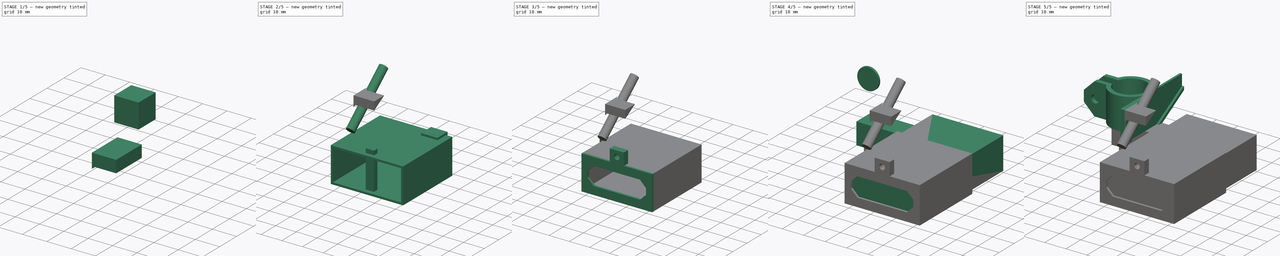
[diagram: build sequence overview — one tinted view per stage of 5, left to right]
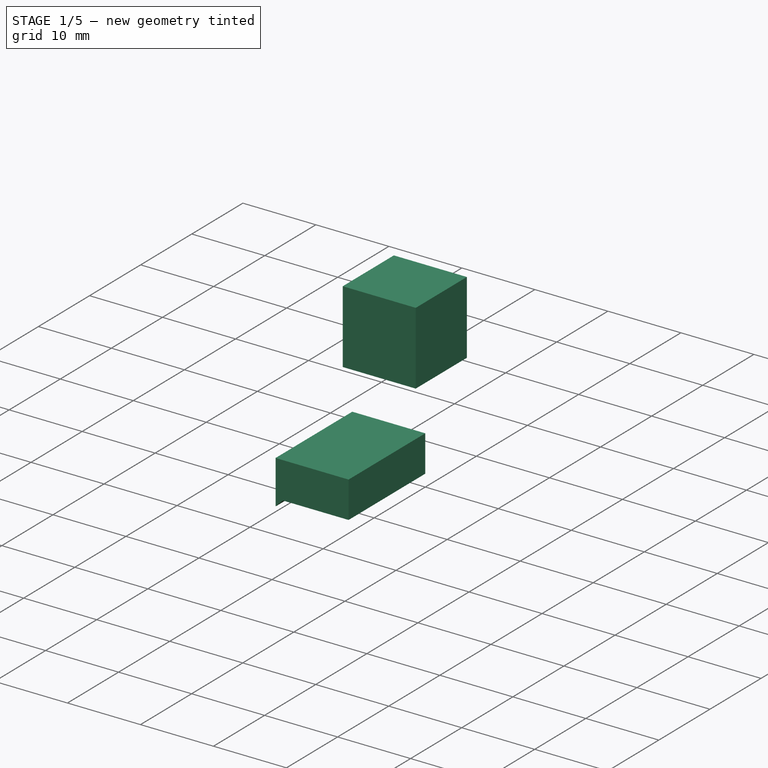
[diagram: stage 1 of 5 — iso view after this stage's code; geometry added in this stage tinted green]
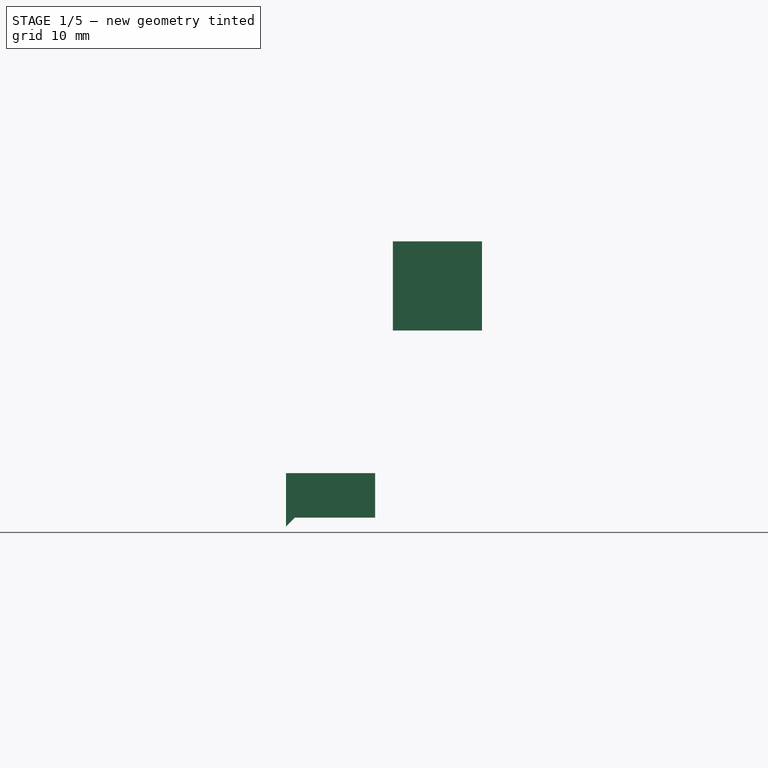
[diagram: stage 1 of 5 — front view after this stage's code; geometry added in this stage tinted green]
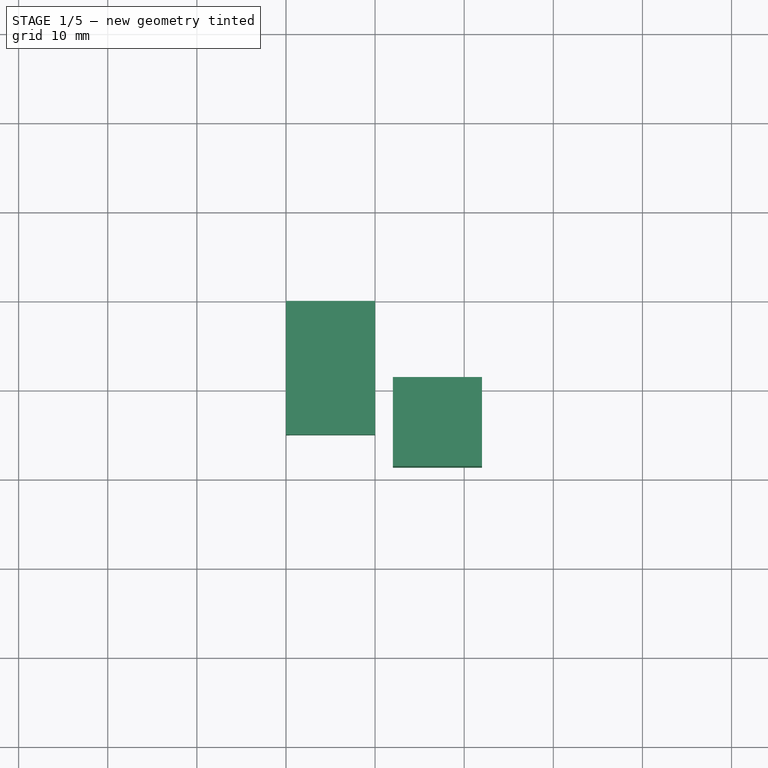
[diagram: stage 1 of 5 — top view after this stage's code; geometry added in this stage tinted green]
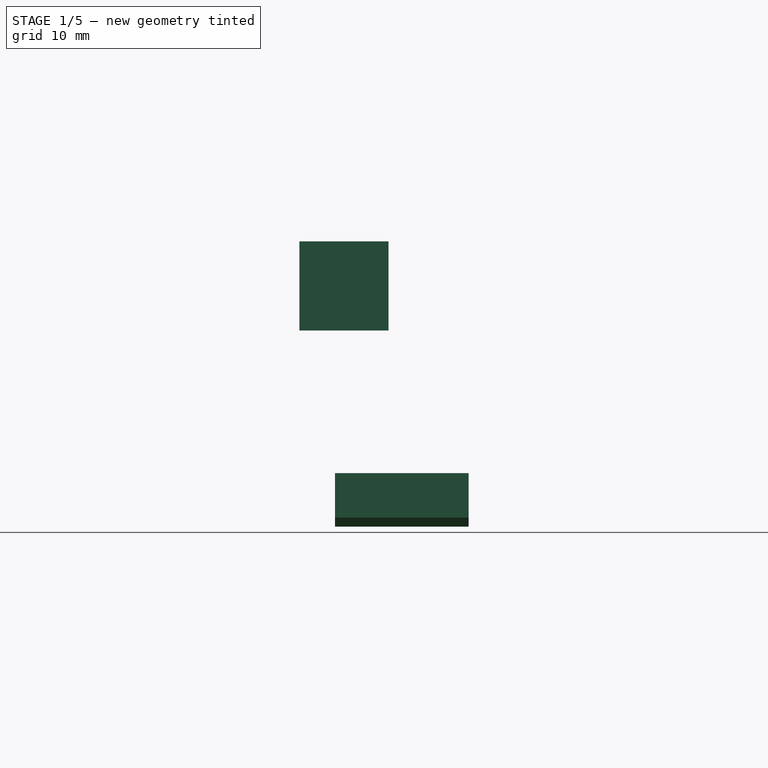
[diagram: stage 1 of 5 — right view after this stage's code; geometry added in this stage tinted green]
FCSTD DOCUMENT  (FreeCAD 0.19R24291 (Git))
Label: generalplus
License: All rights reserved
LicenseURL: http://en.wikipedia.org/wiki/All_rights_reserved
objects: Sketcher::SketchObject×12, Part::Extrusion×12, PartDesign::FeatureBase×6, PartDesign::Body×6, Part::Compound×4, Part::Cylinder×3, Part::Box×3, Part::Cut×3, Part::MultiFuse×2, Part::MultiCommon×2, Part::Mirroring×1, Spreadsheet::Sheet×1
note: 54 computed .brp shape members not serialized (recipe doc carries the construction recipe); baked Part::Feature solids carry a one-line shape summary decoded from their .brp

FEATURE [Sketcher::SketchObject] Sketch023
  FullyConstrained = true
  Placement = pos=(0,0,0) rot=(0.57735,-0.57735,-0.57735;2.0944rad)
  sketch-geometry (5):
    g0: LineSegment StartX=19 StartY=35 StartZ=0 EndX=19 EndY=20 EndZ=0
    g1: LineSegment StartX=19 StartY=20 StartZ=0 EndX=-6.5 EndY=20 EndZ=0
    g2: LineSegment StartX=-21 StartY=28.3716 StartZ=0 EndX=-21 EndY=35 EndZ=0
    g3: LineSegment StartX=-21 StartY=35 StartZ=0 EndX=19 EndY=35 EndZ=0
    g4: LineSegment StartX=-21 StartY=28.3716 StartZ=0 EndX=-6.5 EndY=20 EndZ=0
  constraints (15):
    c: Vertical(g0)
    c: Horizontal(g1)
    c: Vertical(g2)
    c: Coincident(g2,g3)
    c: Coincident(g3,g0)
    c: Horizontal(g3)
    c: DistanceY(g2) = 35
    c: DistanceX(g3,g3) = 40
    c: DistanceX(g0) = 19
    c: Coincident(g0,g1)
    c: DistanceY(g0,g0) = 15
    c: Coincident(g4,g2)
    c: Coincident(g4,g1)
    c: Angle(g1,g4,g1) = 2.61799
    c: DistanceX(g1,g1) = 25.5
FEATURE [Part::Extrusion] Extrude020
  Base = -> Sketch023
  Dir = (-1,0,0)
  DirMode = 2
  FaceMakerClass = Part::FaceMakerBullseye
  LengthFwd = 0
  LengthRev = 2
  Placement = pos=(10,0,0) rot=(0,0,1;0rad)
  Solid = true
  Symmetric = false
FEATURE [Sketcher::SketchObject] Sketch024
  FullyConstrained = true
  Placement = pos=(0,-29,0) rot=(1,0,0;1.5708rad)
  sketch-geometry (4):
    g0: LineSegment StartX=13 StartY=-1.2 StartZ=0 EndX=8 EndY=-1.2 EndZ=0
    g1: LineSegment StartX=8 StartY=-1.2 StartZ=0 EndX=8 EndY=16.2 EndZ=0
    g2: LineSegment StartX=13 StartY=16.2 StartZ=0 EndX=8 EndY=16.2 EndZ=0
    g3: LineSegment StartX=13 StartY=16.2 StartZ=0 EndX=13 EndY=-1.2 EndZ=0
  constraints (12):
    c: Horizontal(g0)
    c: Coincident(g0,g1)
    c: Vertical(g1)
    c: Coincident(g2,g1)
    c: Horizontal(g2)
    c: DistanceY(g0) = -1.2
    c: DistanceX(g0) = 8
    c: DistanceX(g0,g0) = 5
    c: Coincident(g3,g2)
    c: Coincident(g3,g0)
    c: Vertical(g3)
    c: DistanceY(g1) = 16.2
FEATURE [Part::Extrusion] Extrude021
  Base = -> Sketch024
  Dir = (0,-1,2e-16)
  DirMode = 2
  FaceMakerClass = Part::FaceMakerBullseye
  LengthFwd = 1.5
  LengthRev = 60
  Solid = true
  Symmetric = false
FEATURE [PartDesign::FeatureBase] Clone009
  BaseFeature = -> Extrude021
FEATURE [PartDesign::Body] Body009
  BaseFeature = -> Extrude021
  Group = -> [Clone009]
  Origin = -> Origin009
  Placement = pos=(3,16.3,28.6) rot=(1,0,0;0.523599rad)
  Tip = -> Clone009
FEATURE [Part::Cut] Cut
  Base = -> Extrude020
  Tool = -> Body009
FEATURE [Part::Extrusion] Extrude028
  Base = -> Sketch031
  Dir = (0,-1,2e-16)
  DirMode = 2
  FaceMakerClass = Part::FaceMakerBullseye
  LengthFwd = 15
  LengthRev = 0
  Solid = true
  Symmetric = false
FEATURE [PartDesign::FeatureBase] Clone011
  BaseFeature = -> Extrude028
FEATURE [PartDesign::Body] Body011
  BaseFeature = -> Extrude028
  Group = -> [Clone011]
  Origin = -> Origin011
  Placement = pos=(12,-8.6,32.4) rot=(1,0,0;0.523599rad)
  Tip = -> Clone011
FEATURE [Part::Box] Box002  label="Cube001"
  AttacherType = Attacher::AttachEngine3D
  Height = 10
  Length = 10
  Placement = pos=(12,-19,35) rot=(-1,0,0;1.5708rad)
  Width = 10
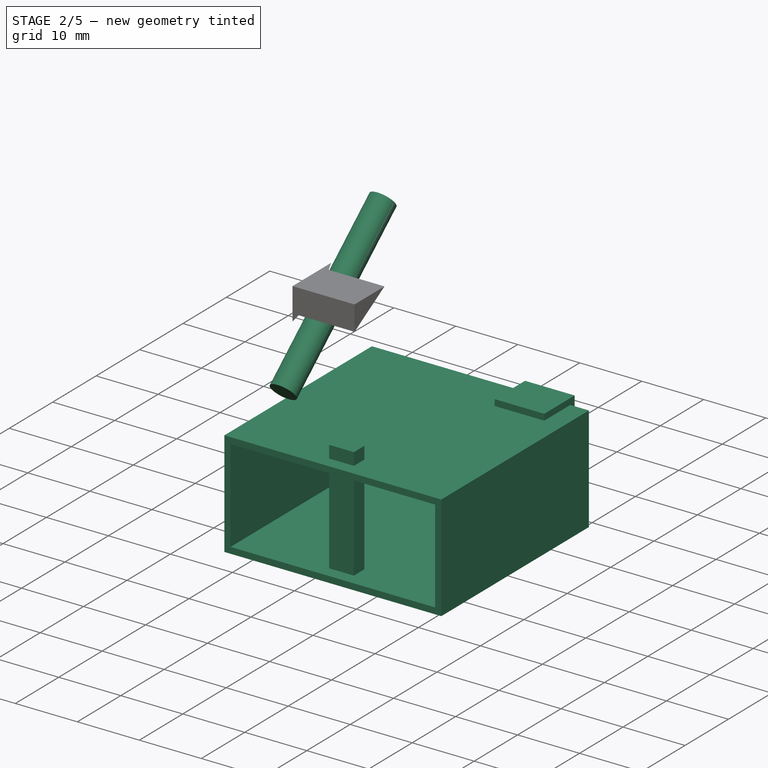
[diagram: stage 2 of 5 — iso view after this stage's code; geometry added in this stage tinted green]
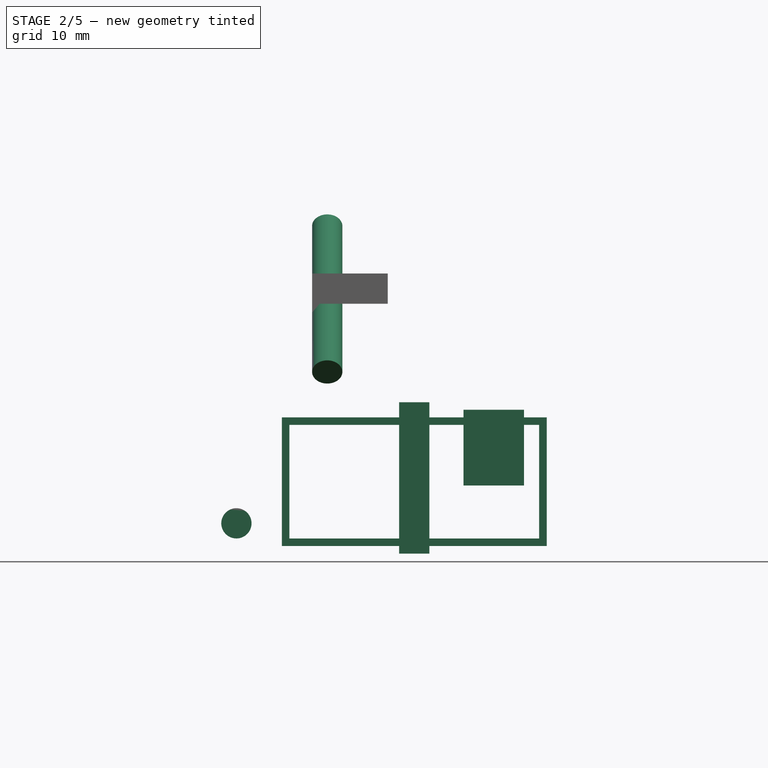
[diagram: stage 2 of 5 — front view after this stage's code; geometry added in this stage tinted green]
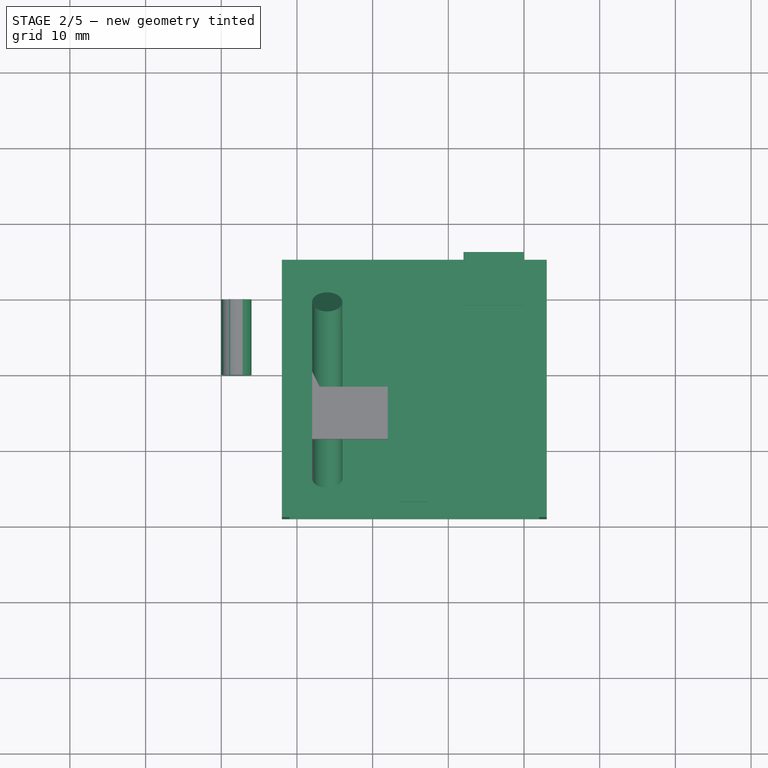
[diagram: stage 2 of 5 — top view after this stage's code; geometry added in this stage tinted green]
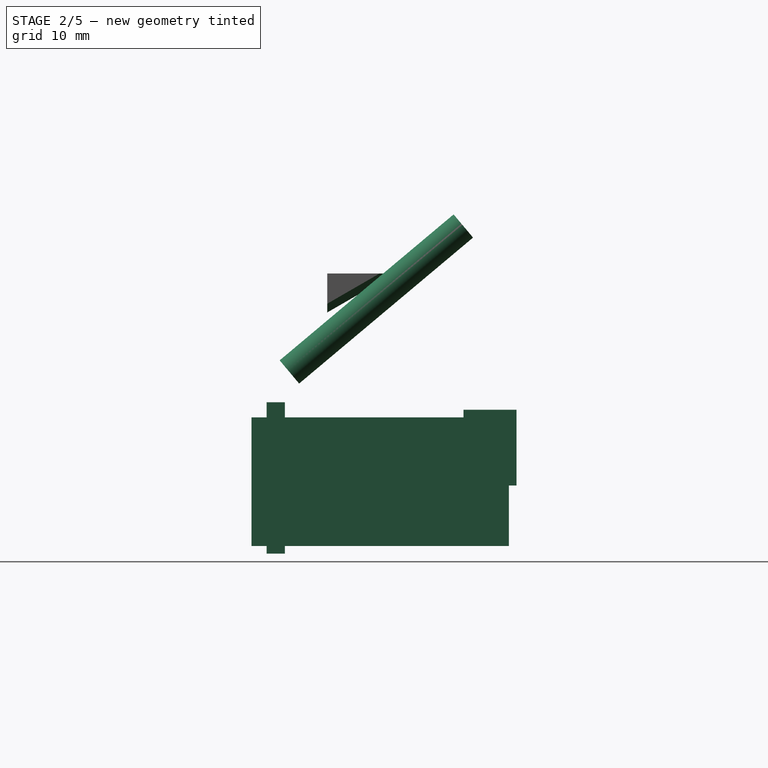
[diagram: stage 2 of 5 — right view after this stage's code; geometry added in this stage tinted green]
FEATURE [PartDesign::Body] Body  label="cam002"
  BaseFeature = -> Compound
  Group = -> [Clone]
  Origin = -> Origin
  Placement = pos=(3,16,32) rot=(1,0,0;0.698132rad)
  Tip = -> Clone
FEATURE [Sketcher::SketchObject] Sketch
  FullyConstrained = false
  Placement = pos=(0,-29,0) rot=(1,0,0;1.5708rad)
  sketch-geometry (8):
    g0: LineSegment StartX=9 StartY=15 StartZ=0 EndX=9 EndY=0 EndZ=0
    g1: LineSegment StartX=9 StartY=0 StartZ=0 EndX=42 EndY=0 EndZ=0
    g2: LineSegment StartX=43 StartY=-1 StartZ=0 EndX=8 EndY=-1 EndZ=0
    g3: LineSegment StartX=8 StartY=-1 StartZ=0 EndX=8 EndY=16 EndZ=0
    g4: LineSegment StartX=9 StartY=15 StartZ=0 EndX=42 EndY=15 EndZ=0
    g5: LineSegment StartX=43 StartY=16 StartZ=0 EndX=8 EndY=16 EndZ=0
    g6: LineSegment StartX=42 StartY=15 StartZ=0 EndX=42 EndY=0 EndZ=0
    g7: LineSegment StartX=43 StartY=-1 StartZ=0 EndX=43 EndY=16 EndZ=0
  constraints (20):
    c: PointOnObject(g0,g-1)
    c: Vertical(g0)
    c: Coincident(g0,g1)
    c: PointOnObject(g1,g-1)
    c: Horizontal(g2)
    c: Coincident(g2,g3)
    c: Vertical(g3)
    c: DistanceX(g1,g1) = 33
    c: DistanceX(g0,g3) = -1
    c: DistanceX(g0) = 9
    c: Coincident(g0,g4)
    c: Horizontal(g4)
    c: Coincident(g5,g3)
    c: Horizontal(g5)
    c: Coincident(g6,g4)
    c: Coincident(g6,g1)
    c: Vertical(g6)
    c: Coincident(g7,g2)
    c: Coincident(g7,g5)
    c: Vertical(g7)
FEATURE [Part::Extrusion] Extrude
  Base = -> Sketch
  Dir = (0,-1,2e-16)
  DirMode = 2
  FaceMakerClass = Part::FaceMakerBullseye
  LengthFwd = 0
  LengthRev = 34
  Solid = true
  Symmetric = false
FEATURE [Sketcher::SketchObject] Sketch027
  FullyConstrained = true
  Placement = pos=(0,0,18) rot=(0,0,1;0rad)
  sketch-geometry (4):
    g0: LineSegment StartX=23.5 StartY=-27 StartZ=0 EndX=27.5 EndY=-27 EndZ=0
    g1: LineSegment StartX=27.5 StartY=-27 StartZ=0 EndX=27.5 EndY=-24.6 EndZ=0
    g2: LineSegment StartX=27.5 StartY=-24.6 StartZ=0 EndX=23.5 EndY=-24.6 EndZ=0
    g3: LineSegment StartX=23.5 StartY=-24.6 StartZ=0 EndX=23.5 EndY=-27 EndZ=0
  constraints (12):
    c: Coincident(g0,g1)
    c: Coincident(g1,g2)
    c: Coincident(g2,g3)
    c: Coincident(g3,g0)
    c: Horizontal(g0)
    c: Horizontal(g2)
    c: Vertical(g1)
    c: Vertical(g3)
    c: DistanceX(g0,g1) = 4
    c: DistanceY(g0,g1) = 2.4
    c: DistanceX(g2) = 23.5
    c: DistanceY(g0) = -27
FEATURE [Part::Extrusion] Extrude024
  Base = -> Sketch027
  Dir = (0,0,1)
  DirMode = 2
  FaceMakerClass = Part::FaceMakerBullseye
  LengthFwd = 0
  LengthRev = 20
  Solid = true
  Symmetric = false
FEATURE [Sketcher::SketchObject] Sketch030
  FullyConstrained = true
  Placement = pos=(0,0,17) rot=(0,0,1;0rad)
  sketch-geometry (4):
    g0: LineSegment StartX=40 StartY=6 StartZ=0 EndX=32 EndY=6 EndZ=0
    g1: LineSegment StartX=32 StartY=6 StartZ=0 EndX=32 EndY=-1 EndZ=0
    g2: LineSegment StartX=32 StartY=-1 StartZ=0 EndX=40 EndY=-1 EndZ=0
    g3: LineSegment StartX=40 StartY=-1 StartZ=0 EndX=40 EndY=6 EndZ=0
  constraints (12):
    c: Coincident(g0,g1)
    c: Coincident(g1,g2)
    c: Coincident(g2,g3)
    c: Coincident(g3,g0)
    c: Horizontal(g0)
    c: Horizontal(g2)
    c: Vertical(g1)
    c: Vertical(g3)
    c: DistanceX(g0) = 40
    c: DistanceY(g0) = 6
    c: DistanceX(g0,g0) = 8
    c: DistanceY(g3,g3) = 7
FEATURE [Part::Extrusion] Extrude027
  Base = -> Sketch030
  Dir = (0,0,1)
  DirMode = 2
  FaceMakerClass = Part::FaceMakerBullseye
  LengthFwd = 0
  LengthRev = 10
  Solid = true
  Symmetric = false
FEATURE [Part::MultiFuse] Fusion
  Shapes = -> [Extrude024,Extrude027]
FEATURE [PartDesign::Body] Body008  label="cam enclosure001"
  BaseFeature = -> Compound004
  Group = -> [Clone008]
  Origin = -> Origin008
  Placement = pos=(3,16,28.5) rot=(1,0,0;0.523599rad)
  Tip = -> Clone008
FEATURE [Sketcher::SketchObject] Sketch031
  FullyConstrained = false
  MapMode = 3
  Placement = pos=(0,0,0) rot=(1,0,0;1.5708rad)
  Support = -> [Cut]
  sketch-geometry (5):
    g0: LineSegment StartX=0 StartY=3 StartZ=0 EndX=1 EndY=4 EndZ=0
    g1: LineSegment StartX=1 StartY=4 StartZ=0 EndX=10 EndY=4 EndZ=0
    g2: LineSegment StartX=10 StartY=4 StartZ=0 EndX=10 EndY=9 EndZ=0
    g3: LineSegment StartX=10 StartY=9 StartZ=0 EndX=0 EndY=9 EndZ=0
    g4: LineSegment StartX=0 StartY=9 StartZ=0 EndX=0 EndY=3 EndZ=0
  constraints (14):
    c: PointOnObject(g0,g-2)
    c: Coincident(g0,g1)
    c: Horizontal(g1)
    c: Coincident(g1,g2)
    c: Vertical(g2)
    c: Coincident(g2,g3)
    c: Horizontal(g3)
    c: Coincident(g4,g0)
    c: Vertical(g4)
    c: DistanceY(g1) = 4
    c: Coincident(g3,g4)
    c: DistanceX(g3,g3) = 10
    c: DistanceX(g0,g0) = 1
    c: DistanceY(g0,g0) = 1
FEATURE [Part::Cylinder] Cylinder
  Angle = 360
  AttacherType = Attacher::AttachEngine3D
  Height = 30
  Placement = pos=(14,-24,22) rot=(-1,0,0;0.872665rad)
  Radius = 2
FEATURE [Part::Cylinder] Cylinder008
  Angle = 360
  AttacherType = Attacher::AttachEngine3D
  Height = 10
  Placement = pos=(2,0,2) rot=(1,0,0;1.5708rad)
  Radius = 2
FEATURE [Part::MultiCommon] Common  label="cable"
  Shapes = -> [Box002,Body011]
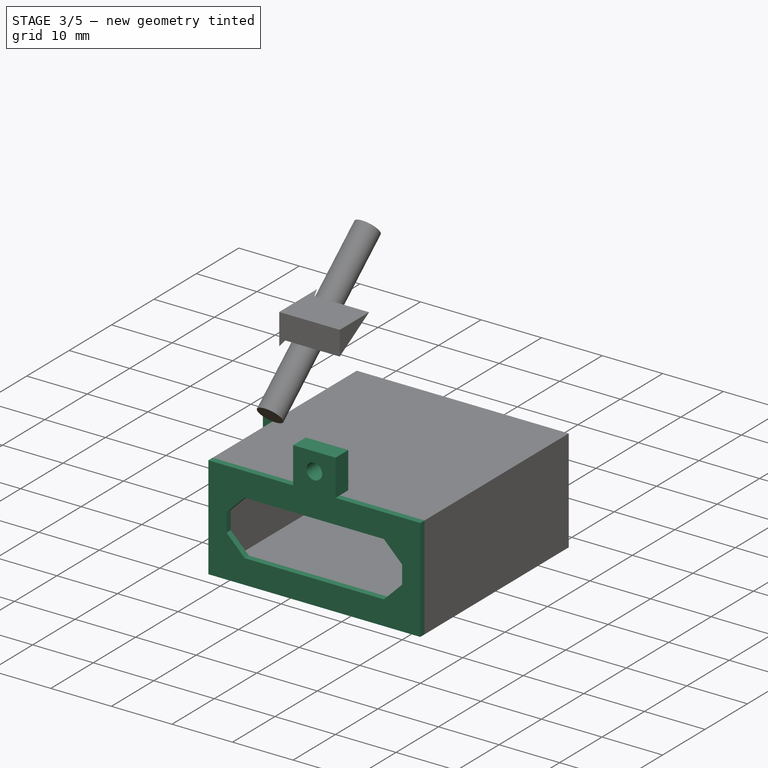
[diagram: stage 3 of 5 — iso view after this stage's code; geometry added in this stage tinted green]
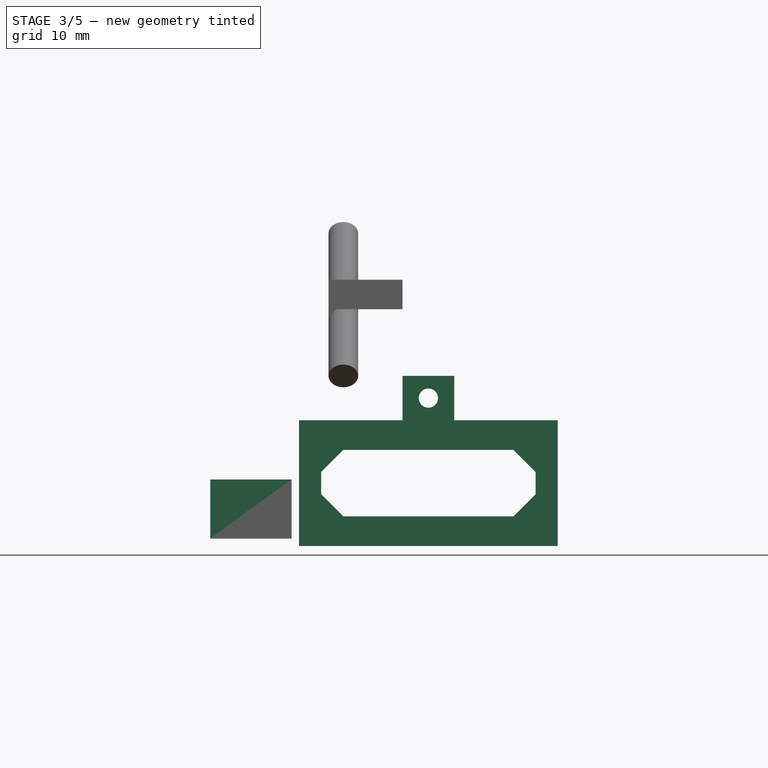
[diagram: stage 3 of 5 — front view after this stage's code; geometry added in this stage tinted green]
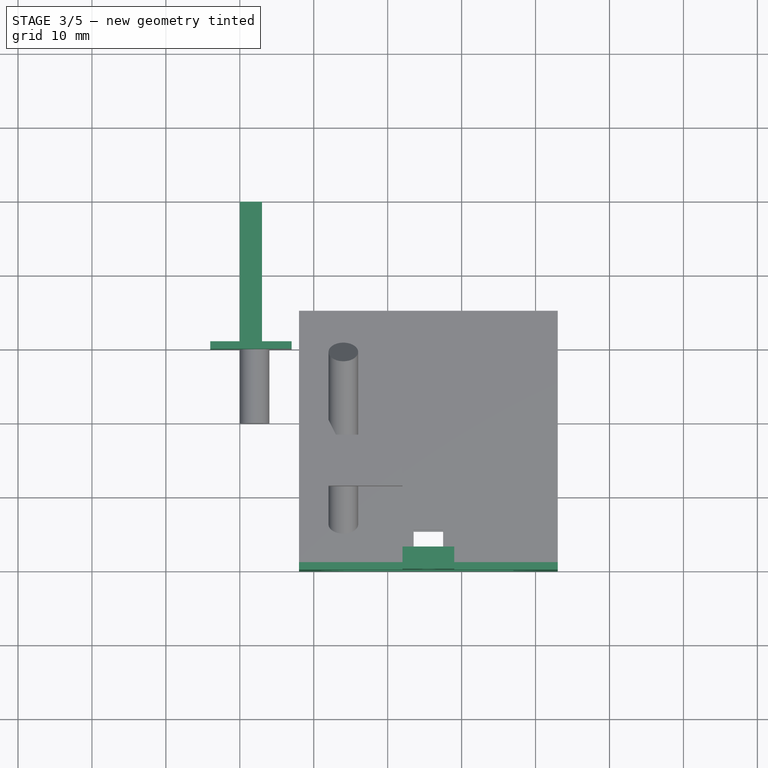
[diagram: stage 3 of 5 — top view after this stage's code; geometry added in this stage tinted green]
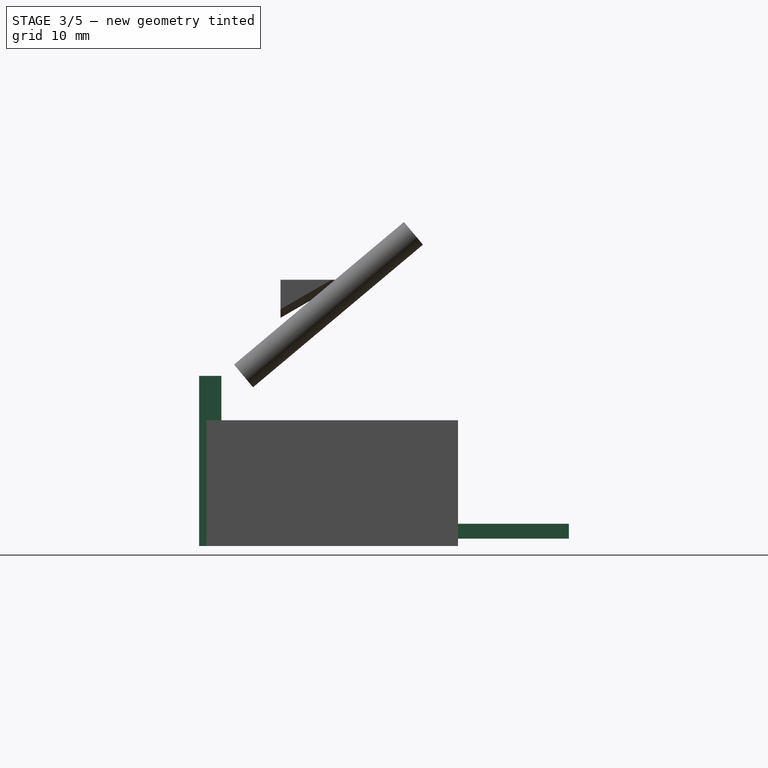
[diagram: stage 3 of 5 — right view after this stage's code; geometry added in this stage tinted green]
FEATURE [Sketcher::SketchObject] Sketch021
  FullyConstrained = false
  Placement = pos=(0,-29,0) rot=(1,0,0;1.5708rad)
  sketch-geometry (12):
    g0: LineSegment StartX=8 StartY=16 StartZ=0 EndX=43 EndY=16 EndZ=0
    g1: LineSegment StartX=43 StartY=16 StartZ=0 EndX=43 EndY=-1 EndZ=0
    g2: LineSegment StartX=37 StartY=12 StartZ=0 EndX=14 EndY=12 EndZ=0
    g3: LineSegment StartX=14 StartY=12 StartZ=0 EndX=11 EndY=9 EndZ=0
    g4: LineSegment StartX=11 StartY=9 StartZ=0 EndX=11 EndY=6 EndZ=0
    g5: LineSegment StartX=11 StartY=6 StartZ=0 EndX=14 EndY=3 EndZ=0
    g6: LineSegment StartX=14 StartY=3 StartZ=0 EndX=37 EndY=3 EndZ=0
    g7: LineSegment StartX=43 StartY=-1 StartZ=0 EndX=8 EndY=-1 EndZ=0
    g8: LineSegment StartX=8 StartY=-1 StartZ=0 EndX=8 EndY=16 EndZ=0
    g9: LineSegment StartX=37 StartY=12 StartZ=0 EndX=40 EndY=9 EndZ=0
    g10: LineSegment StartX=40 StartY=9 StartZ=0 EndX=40 EndY=6 EndZ=0
    g11: LineSegment StartX=40 StartY=6 StartZ=0 EndX=37 EndY=3 EndZ=0
  constraints (35):
    c: Horizontal(g0)
    c: Coincident(g0,g1)
    c: Vertical(g1)
    c: Horizontal(g2)
    c: Coincident(g2,g3)
    c: Coincident(g3,g4)
    c: Vertical(g4)
    c: Coincident(g4,g5)
    c: Coincident(g5,g6)
    c: Horizontal(g6)
    c: Horizontal(g7)
    c: Coincident(g7,g8)
    c: Coincident(g8,g0)
    c: Vertical(g8)
    c: Angle(g5,g6,g5) = 0.785398
    c: Angle(g2,g3,g2) = 0.785398
    c: DistanceX(g0,g3) = 3
    c: DistanceY(g8,g8) = 17
    c: DistanceX(g7) = 8
    c: DistanceY(g7) = -1
    c: Vertical(g5,g2)
    c: Coincident(g1,g7)
    c: Coincident(g2,g9)
    c: Coincident(g9,g10)
    c: Vertical(g10)
    c: Coincident(g10,g11)
    c: Coincident(g11,g6)
    c: Angle(g11,g6,g6) = 2.35619
    c: Angle(g2,g9,g2) = 2.35619
    c: DistanceY(g1,g6) = 4
    c: DistanceY(g2,g0) = 4
    c: DistanceX(g3,g9) = 29
    c: DistanceY(g10,g10) = 3
    c: DistanceY(g4,g4) = 3
    c: Vertical(g6,g2)
FEATURE [Part::Extrusion] Extrude018
  Base = -> Sketch021
  Dir = (0,-1,2e-16)
  DirMode = 2
  FaceMakerClass = Part::FaceMakerBullseye
  LengthFwd = 1
  LengthRev = 0
  Solid = true
  Symmetric = false
FEATURE [Sketcher::SketchObject] Sketch026
  FullyConstrained = true
  sketch-geometry (4):
    g0: LineSegment StartX=0 StartY=20 StartZ=0 EndX=0 EndY=0 EndZ=0
    g1: LineSegment StartX=0 StartY=20 StartZ=0 EndX=3 EndY=20 EndZ=0
    g2: LineSegment StartX=3 StartY=20 StartZ=0 EndX=3 EndY=0 EndZ=0
    g3: LineSegment StartX=3 StartY=0 StartZ=0 EndX=0 EndY=0 EndZ=0
  constraints (11):
    c: Vertical(g0)
    c: Coincident(g0,g1)
    c: Horizontal(g1)
    c: Coincident(g1,g2)
    c: Vertical(g2)
    c: Coincident(g2,g3)
    c: Horizontal(g3)
    c: DistanceY(g2,g2) = 20
    c: DistanceX(g1,g1) = 3
    c: Coincident(g0,g3)
    c: Coincident(g0,g-1)
FEATURE [Part::Extrusion] Extrude023
  Base = -> Sketch026
  Dir = (0,0,1)
  DirMode = 2
  FaceMakerClass = Part::FaceMakerBullseye
  LengthFwd = 2
  LengthRev = 0
  Solid = true
  Symmetric = false
FEATURE [Sketcher::SketchObject] Sketch028
  FullyConstrained = false
  Placement = pos=(0,0,0) rot=(1,0,0;1.5708rad)
  sketch-geometry (4):
    g0: LineSegment StartX=7 StartY=0 StartZ=0 EndX=-4 EndY=0 EndZ=0
    g1: LineSegment StartX=-4 StartY=0 StartZ=0 EndX=-4 EndY=8 EndZ=0
    g2: LineSegment StartX=-4 StartY=8 StartZ=0 EndX=7 EndY=8 EndZ=0
    g3: LineSegment StartX=7 StartY=8 StartZ=0 EndX=7 EndY=0 EndZ=0
  constraints (10):
    c: Coincident(g0,g1)
    c: Coincident(g1,g2)
    c: Coincident(g2,g3)
    c: Coincident(g3,g0)
    c: Horizontal(g0)
    c: Horizontal(g2)
    c: Vertical(g1)
    c: Vertical(g3)
    c: DistanceX(g0,g2) = 11
    c: DistanceY(g0,g2) = 8
FEATURE [Part::Extrusion] Extrude025
  Base = -> Sketch028
  Dir = (0,-1,-2e-16)
  DirMode = 2
  FaceMakerClass = Part::FaceMakerBullseye
  LengthFwd = 0
  LengthRev = 1
  Solid = true
  Symmetric = false
FEATURE [Part::Compound] Compound005  label="pin"
  Links = -> [Extrude023,Extrude025]
FEATURE [PartDesign::FeatureBase] Clone010
  BaseFeature = -> Compound005
FEATURE [PartDesign::Body] Body010  label="pin001"
  BaseFeature = -> Compound005
  Group = -> [Clone010]
  Origin = -> Origin010
  Placement = pos=(24,-26.5,17) rot=(-1,0,0;1.5708rad)
  Tip = -> Clone010
FEATURE [Part::Cut] Cut001
  Base = -> Extrude
  Tool = -> Extrude024
FEATURE [Sketcher::SketchObject] Sketch029
  FullyConstrained = false
  Placement = pos=(0,-30,0) rot=(1,0,0;1.5708rad)
  expr: Constraints[0] = Spreadsheet.screw_r3
  sketch-geometry (5):
    g0: Circle CenterX=25.5 CenterY=19 CenterZ=0 NormalX=0 NormalY=0 NormalZ=1 AngleXU=0 Radius=1.3
    g1: LineSegment StartX=22 StartY=22 StartZ=0 EndX=22 EndY=16 EndZ=0
    g2: LineSegment StartX=22 StartY=16 StartZ=0 EndX=29 EndY=16 EndZ=0
    g3: LineSegment StartX=29 StartY=16 StartZ=0 EndX=29 EndY=22 EndZ=0
    g4: LineSegment StartX=22 StartY=22 StartZ=0 EndX=29 EndY=22 EndZ=0
  constraints (14):
    c: Radius(g0) = 1.3
    c: DistanceX(g0) = 25.5
    c: DistanceY(g0) = 19
    c: Coincident(g1,g2)
    c: Horizontal(g2)
    c: Coincident(g2,g3)
    c: Vertical(g3)
    c: DistanceY(g1,g1) = 6
    c: DistanceX(g1) = 22
    c: DistanceX(g2,g2) = 7
    c: DistanceY(g1) = 16
    c: Coincident(g4,g1)
    c: Coincident(g4,g3)
    c: Horizontal(g4)
FEATURE [Part::Extrusion] Extrude026
  Base = -> Sketch029
  Dir = (0,-1,2e-16)
  DirMode = 2
  FaceMakerClass = Part::FaceMakerBullseye
  LengthFwd = 0
  LengthRev = 3
  Solid = true
  Symmetric = false
FEATURE [Part::Cut] Cut002
  Base = -> Extrude
  Tool = -> Fusion
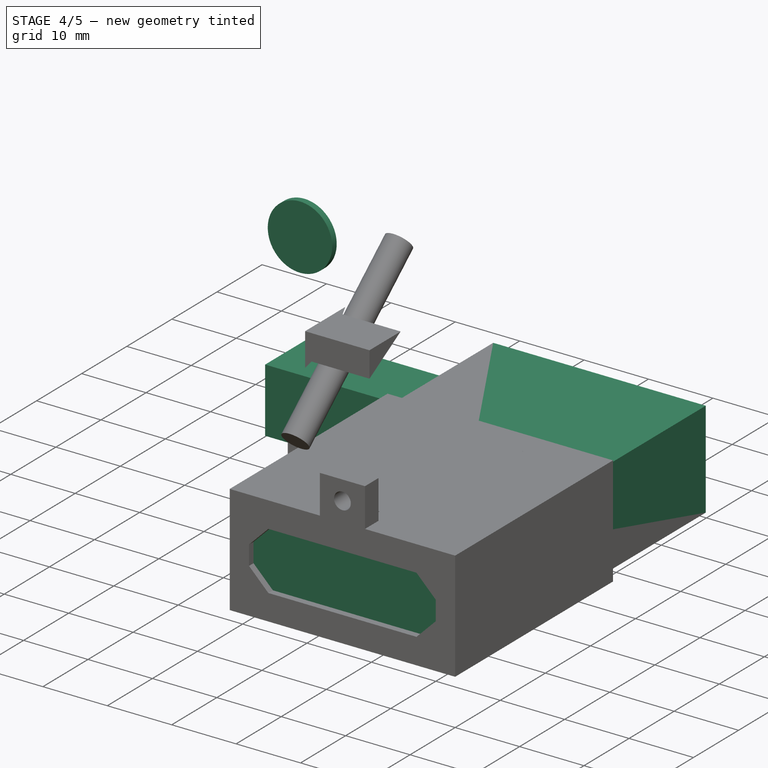
[diagram: stage 4 of 5 — iso view after this stage's code; geometry added in this stage tinted green]
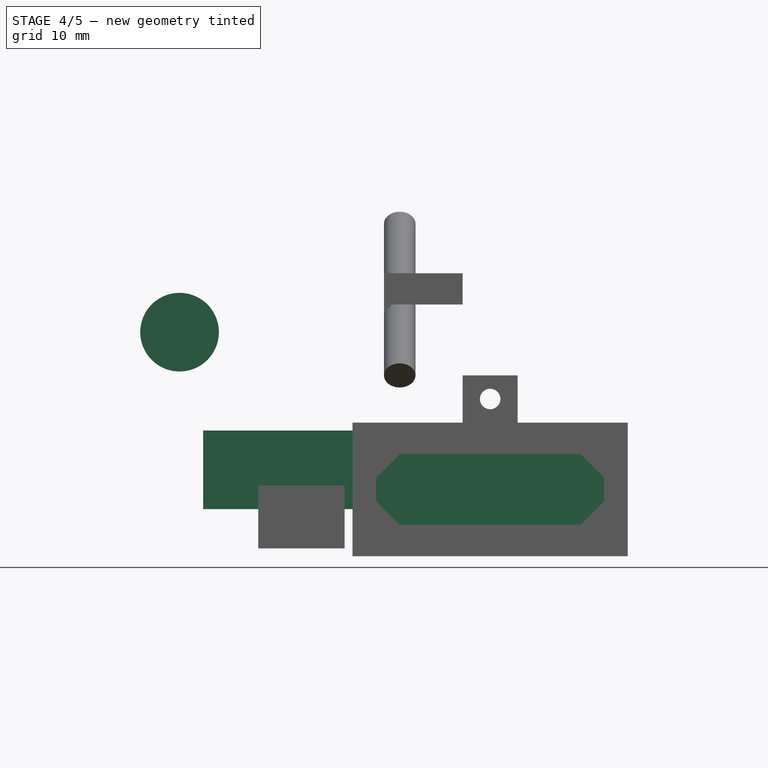
[diagram: stage 4 of 5 — front view after this stage's code; geometry added in this stage tinted green]
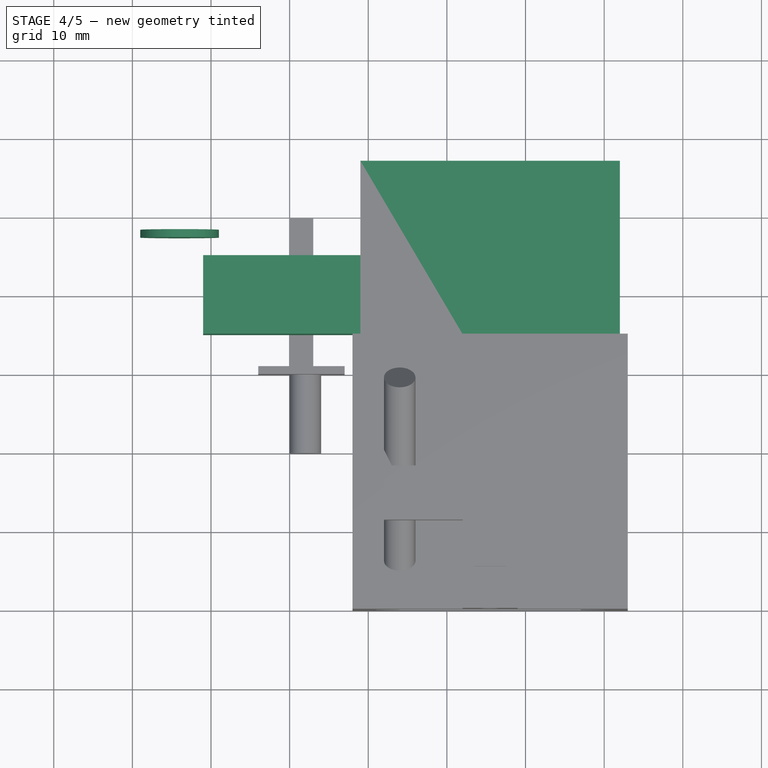
[diagram: stage 4 of 5 — top view after this stage's code; geometry added in this stage tinted green]
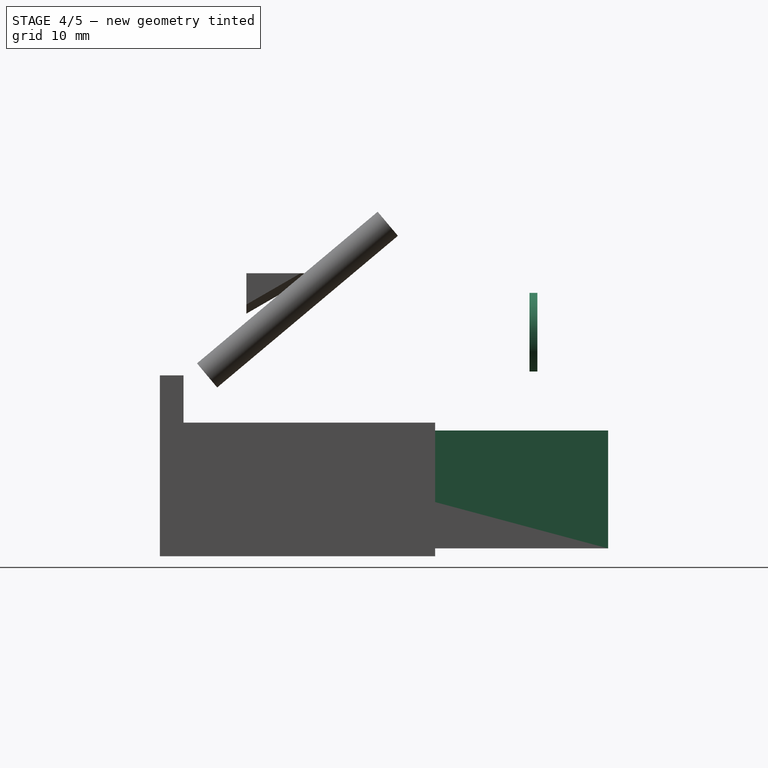
[diagram: stage 4 of 5 — right view after this stage's code; geometry added in this stage tinted green]
FEATURE [Part::Cylinder] Cylinder007  label="unprintable"
  Angle = 360
  AttacherType = Attacher::AttachEngine3D
  Height = 1
  Placement = pos=(-14,18,27.5) rot=(1,0,0;1.5708rad)
  Radius = 5
FEATURE [Spreadsheet::Sheet] Spreadsheet
  cells = A1=lunchbox screw r1; B1(lunchbox_screw_r1)=1.4; A2=4_40_r; B2(r_4_40)=1.7; A3=cf radius; B3(cf_radius)=7.25; A4=servo r; B4(servo_r)=16; A5=r_6_32; B5(r_6_32)=1.85; A7=screw_r1; B7(screw_r1)=2.6; C7=m2.6 screw sizes; A8=screw_r2; B8(screw_r2)=1.6; A9=screw_r3; B9(screw_r3)=1.3
FEATURE [Part::Box] Box  label="cam"
  AttacherType = Attacher::AttachEngine3D
  Height = 15
  Length = 56
  Placement = pos=(9,27,0) rot=(0,0,-1;1.5708rad)
  Width = 33
FEATURE [Part::Box] Box001  label="Cube"
  AttacherType = Attacher::AttachEngine3D
  Height = 10
  Length = 20
  Placement = pos=(9,15,5) rot=(0,0,1;3.14159rad)
  Width = 10
FEATURE [Part::Compound] Compound  label="cam001"
  Links = -> [Box,Box001]
FEATURE [PartDesign::FeatureBase] Clone
  BaseFeature = -> Compound
FEATURE [Part::Compound] Compound004  label="cam enclosure"
  Links = -> [Extrude018,Extrude026,Cut002]
FEATURE [PartDesign::FeatureBase] Clone008
  BaseFeature = -> Compound004
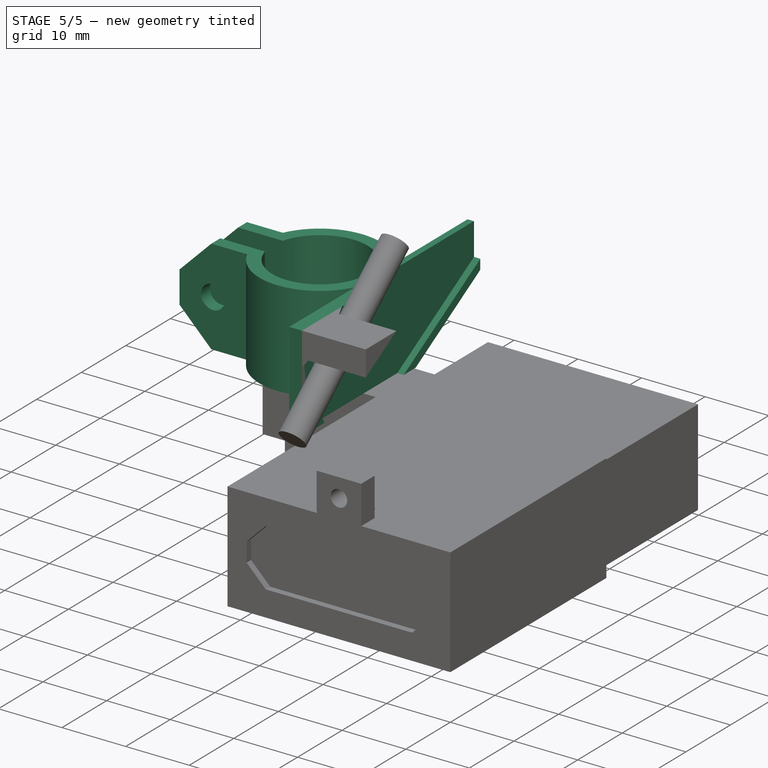
[diagram: stage 5 of 5 — iso view after this stage's code; geometry added in this stage tinted green]
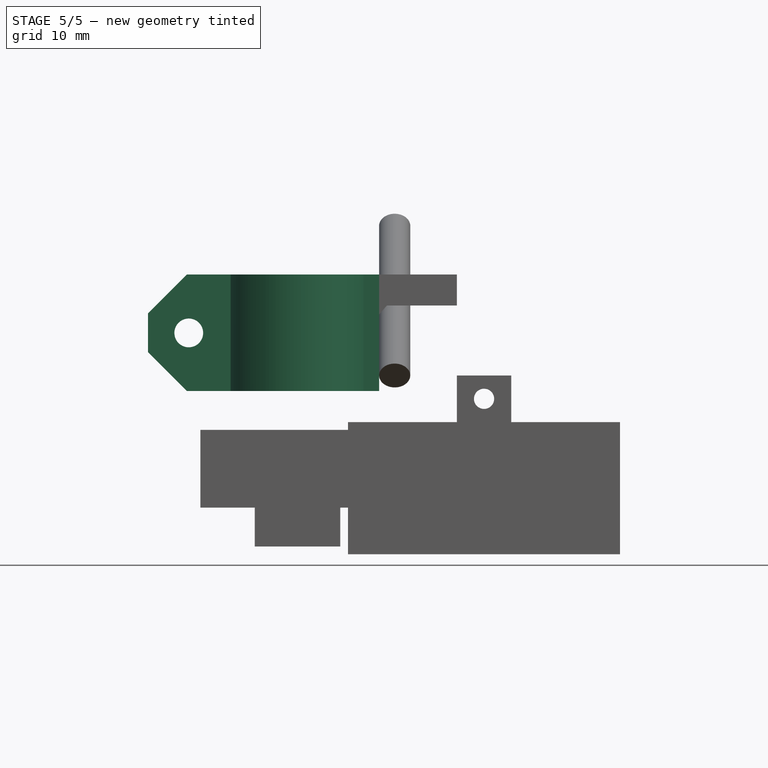
[diagram: stage 5 of 5 — front view after this stage's code; geometry added in this stage tinted green]
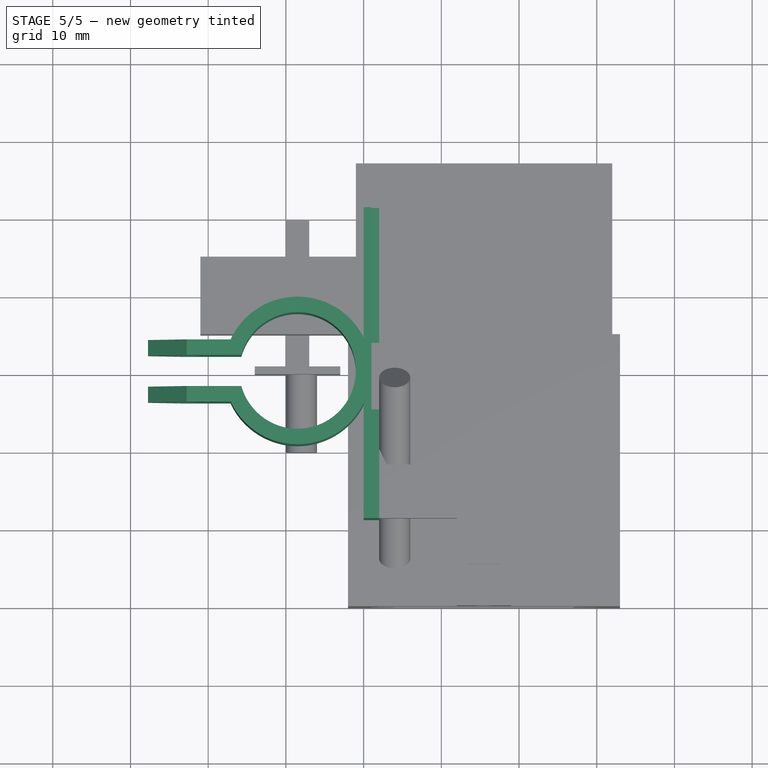
[diagram: stage 5 of 5 — top view after this stage's code; geometry added in this stage tinted green]
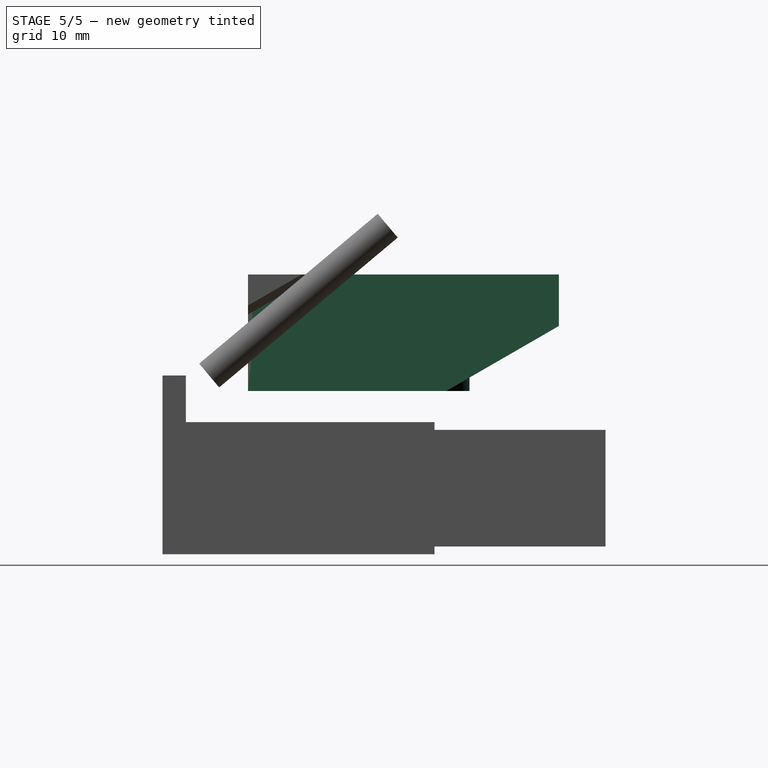
[diagram: stage 5 of 5 — right view after this stage's code; geometry added in this stage tinted green]
FEATURE [Sketcher::SketchObject] Sketch015
  FullyConstrained = true
  Placement = pos=(0,0,50) rot=(0,0,1;0rad)
  expr: Constraints[3] = Spreadsheet.cf_radius + 2.25
  expr: Constraints[2] = Spreadsheet.cf_radius + 0.25
  sketch-geometry (6):
    g0: ArcOfCircle CenterX=0 CenterY=0 CenterZ=0 NormalX=0 NormalY=0 NormalZ=1 AngleXU=0 Radius=7.5 StartAngle=0 EndAngle=2.87166
    g1: ArcOfCircle CenterX=0 CenterY=0 CenterZ=0 NormalX=0 NormalY=0 NormalZ=1 AngleXU=0 Radius=9.5 StartAngle=0 EndAngle=2.70699
    g2: LineSegment StartX=7.5 StartY=0 StartZ=0 EndX=9.5 EndY=0 EndZ=0
    g3: LineSegment StartX=-7.22842 StartY=2 StartZ=0 EndX=-21.2284 EndY=2 EndZ=0
    g4: LineSegment StartX=-8.61684 StartY=4 StartZ=0 EndX=-21.2284 EndY=4 EndZ=0
    g5: LineSegment StartX=-21.2284 StartY=4 StartZ=0 EndX=-21.2284 EndY=2 EndZ=0
  constraints (18):
    c: Coincident(g0,g-1)
    c: Coincident(g1,g0)
    c: Radius(g0) = 7.5
    c: Radius(g1) = 9.5
    c: DistanceY(g0,g0) = 2
    c: PointOnObject(g0,g-1)
    c: Coincident(g2,g0)
    c: Coincident(g2,g1)
    c: Horizontal(g2)
    c: Coincident(g0,g3)
    c: Horizontal(g3)
    c: DistanceX(g3,g3) = 14
    c: Coincident(g4,g1)
    c: Horizontal(g4)
    c: Coincident(g5,g4)
    c: Coincident(g5,g3)
    c: Vertical(g5)
    c: DistanceY(g3,g4) = 2
FEATURE [Sketcher::SketchObject] Sketch016
  FullyConstrained = true
  Placement = pos=(0,0,0) rot=(1,0,0;1.5708rad)
  expr: Constraints[10] = Spreadsheet.r_6_32
  sketch-geometry (7):
    g0: LineSegment StartX=11.75 StartY=36 StartZ=0 EndX=11.75 EndY=19 EndZ=0
    g1: LineSegment StartX=11.75 StartY=19 StartZ=0 EndX=-13.25 EndY=19 EndZ=0
    g2: LineSegment StartX=-13.25 StartY=19 StartZ=0 EndX=-19.25 EndY=25 EndZ=0
    g3: LineSegment StartX=-19.25 StartY=25 StartZ=0 EndX=-19.25 EndY=30 EndZ=0
    g4: LineSegment StartX=-19.25 StartY=30 StartZ=0 EndX=-13.25 EndY=36 EndZ=0
    g5: LineSegment StartX=-13.25 StartY=36 StartZ=0 EndX=11.75 EndY=36 EndZ=0
    g6: Circle CenterX=-14 CenterY=27.4816 CenterZ=0 NormalX=0 NormalY=0 NormalZ=1 AngleXU=0 Radius=1.85
  constraints (21):
    c: Vertical(g0)
    c: Coincident(g0,g1)
    c: Horizontal(g1)
    c: Coincident(g1,g2)
    c: Coincident(g2,g3)
    c: Vertical(g3)
    c: Coincident(g3,g4)
    c: Coincident(g4,g5)
    c: Coincident(g5,g0)
    c: Horizontal(g5)
    c: Radius(g6) = 1.85
    c: DistanceX(g6) = -14
    c: DistanceY(g6) = 27.4816
    c: DistanceX(g1,g2) = -6
    c: DistanceY(g1,g2) = 6
    c: DistanceX(g4,g3) = -6
    c: DistanceY(g4,g3) = -6
    c: DistanceX(g0,g1) = -25
    c: DistanceY(g0,g1) = -17
    c: DistanceX(g0) = 11.75
    c: DistanceY(g0) = 36
FEATURE [Part::Extrusion] Extrude013
  Base = -> Sketch016
  Dir = (0,-1,2e-16)
  DirMode = 2
  FaceMakerClass = Part::FaceMakerBullseye
  LengthFwd = 0
  LengthRev = 12
  Solid = true
  Symmetric = false
FEATURE [Part::Extrusion] Extrude012
  Base = -> Sketch015
  Dir = (0,0,1)
  DirMode = 2
  FaceMakerClass = Part::FaceMakerBullseye
  LengthFwd = 15
  LengthRev = 0
  Placement = pos=(0,0,-30) rot=(0,0,1;0rad)
  Solid = true
  Symmetric = false
FEATURE [Part::MultiFuse] Fusion016
  Shapes = -> [Extrude012,Cylinder007]
FEATURE [Part::MultiCommon] Common001
  Placement = pos=(1.5,0,0) rot=(0,0,1;0rad)
  Shapes = -> [Fusion016,Extrude013]
FEATURE [PartDesign::FeatureBase] Clone007
  BaseFeature = -> Common001
FEATURE [PartDesign::Body] Body007
  BaseFeature = -> Common001
  Group = -> [Clone007]
  Origin = -> Origin007
  Tip = -> Clone007
FEATURE [Part::Mirroring] Part__Mirroring008  label="Body007 (Mirror #8)"
  Base = (0,0,0)
  Normal = (0,1,0)
  Placement = pos=(1.5,0,0) rot=(0,0,1;0rad)
  Source = -> Body007
FEATURE [Part::Compound] Compound003  label="collar"
  Links = -> [Common001,Part__Mirroring008,Cut,Common]
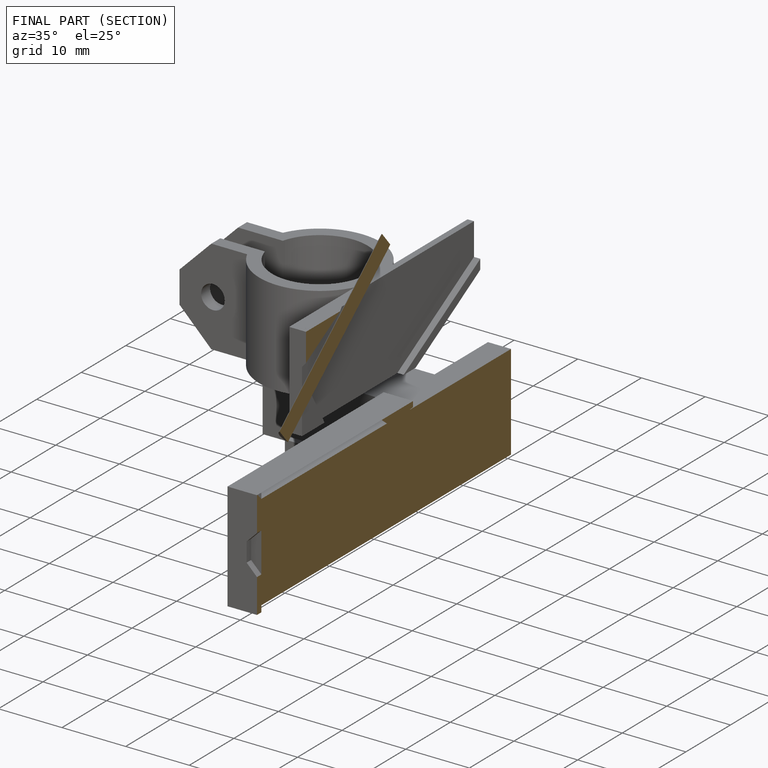
[diagram: finished part — half-section view (interior)]
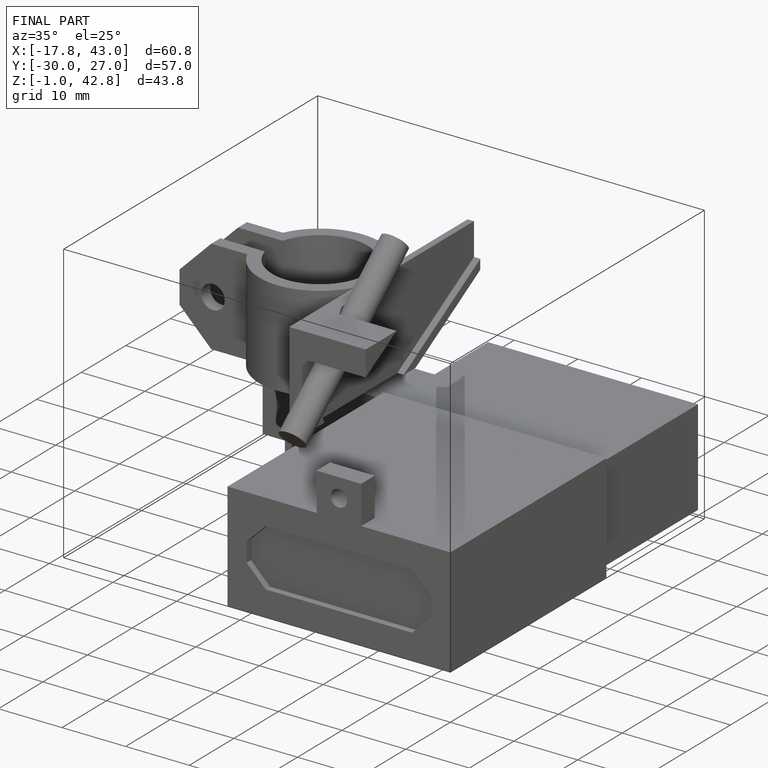
[diagram: finished part — iso view with bounding-box wireframe]
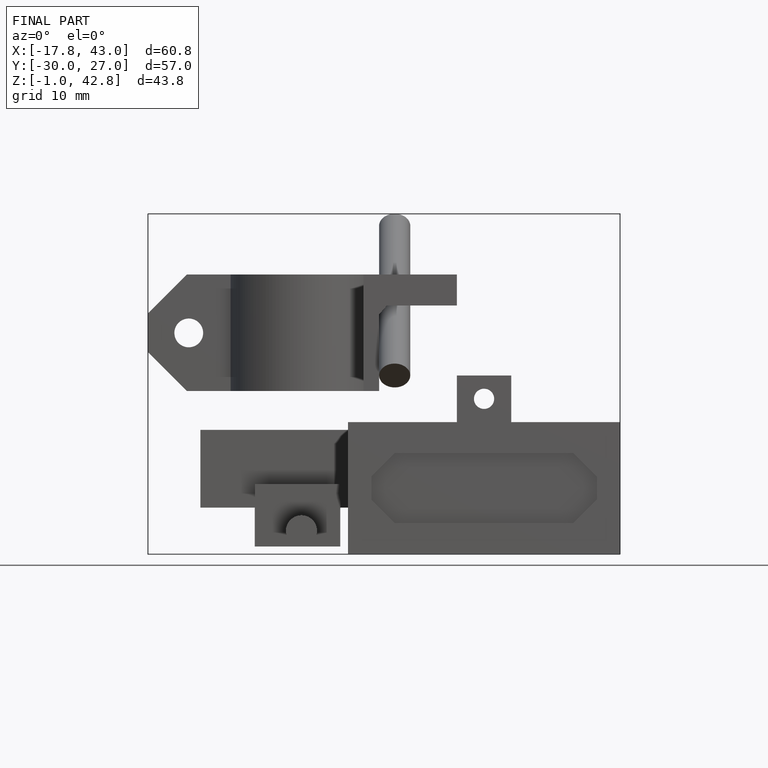
[diagram: finished part — front view with bounding-box wireframe]
